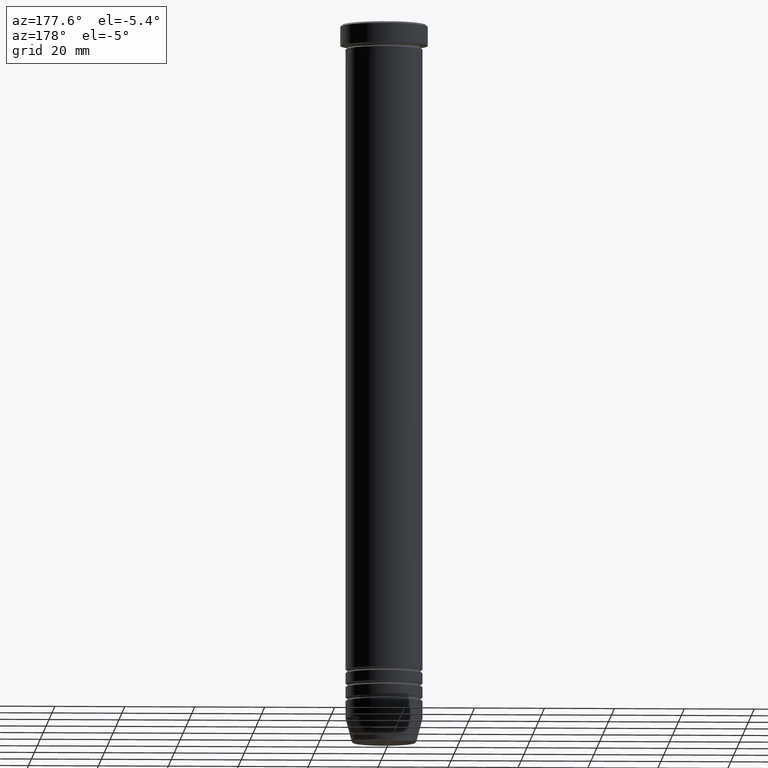
[diagram: clean part render]
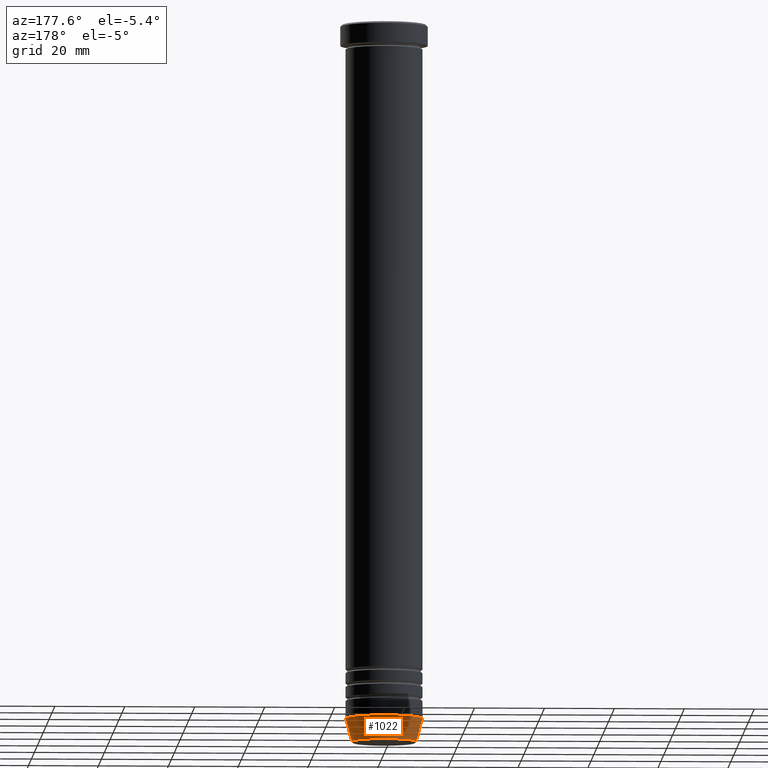
[diagram: same view with one face highlighted and labeled with its STEP entity id]
A machine part, auxiliary view. The second image highlights one B-rep face of the part: STEP entity #1022.
In plain terms, the highlighted conical surface has half-angle 15 deg.
Its self-contained STEP definition (entity closure, byte-faithful):
#20 = CARTESIAN_POINT ( 'NONE',  ( -9.124355652982140796, 1.117411294470663595E-15, -206.0000000000000284 ) ) ;
#23 = CIRCLE ( 'NONE', #204, 9.223655072137194821 ) ;
#57 = EDGE_LOOP ( 'NONE', ( #1067, #206, #1058, #1090 ) ) ;
#98 = CARTESIAN_POINT ( 'NONE',  ( -11.00000000000000178, 1.347111479062088602E-15, -199.0000000000000000 ) ) ;
#128 = EDGE_CURVE ( 'NONE', #1053, #719, #23, .T. ) ;
#135 = DIRECTION ( 'NONE',  ( -0.000000000000000000, -0.000000000000000000, 1.000000000000000000 ) ) ;
#202 = DIRECTION ( 'NONE',  ( -0.2588190451025206840, 3.169619151431763092E-17, 0.9659258262890683122 ) ) ;
#204 = AXIS2_PLACEMENT_3D ( 'NONE', #535, #465, #1077 ) ;
#206 = ORIENTED_EDGE ( 'NONE', *, *, #925, .T. ) ;
#225 = VECTOR ( 'NONE', #568, 1000.000000000000114 ) ;
#259 = EDGE_CURVE ( 'NONE', #664, #1116, #1021, .T. ) ;
#309 = DIRECTION ( 'NONE',  ( 1.000000000000000000, 0.000000000000000000, 0.000000000000000000 ) ) ;
#361 = AXIS2_PLACEMENT_3D ( 'NONE', #1012, #135, #309 ) ;
#464 = CARTESIAN_POINT ( 'NONE',  ( 9.223655072137194821, 0.000000000000000000, -205.6294095225512706 ) ) ;
#465 = DIRECTION ( 'NONE',  ( -0.000000000000000000, -0.000000000000000000, 1.000000000000000000 ) ) ;
#473 = AXIS2_PLACEMENT_3D ( 'NONE', #1007, #500, #1122 ) ;
#500 = DIRECTION ( 'NONE',  ( -0.000000000000000000, -0.000000000000000000, 1.000000000000000000 ) ) ;
#534 = LINE ( 'NONE', #20, #984 ) ;
#535 = CARTESIAN_POINT ( 'NONE',  ( 0.000000000000000000, 0.000000000000000000, -205.6294095225512706 ) ) ;
#564 = CARTESIAN_POINT ( 'NONE',  ( 11.00000000000000178, 0.000000000000000000, -199.0000000000000000 ) ) ;
#568 = DIRECTION ( 'NONE',  ( 0.2588190451025206840, 0.000000000000000000, 0.9659258262890683122 ) ) ;
#664 = VERTEX_POINT ( 'NONE', #564 ) ;
#719 = VERTEX_POINT ( 'NONE', #1084 ) ;
#923 = CARTESIAN_POINT ( 'NONE',  ( 9.124355652982140796, 0.000000000000000000, -206.0000000000000284 ) ) ;
#925 = EDGE_CURVE ( 'NONE', #719, #1116, #534, .T. ) ;
#984 = VECTOR ( 'NONE', #202, 1000.000000000000114 ) ;
#1007 = CARTESIAN_POINT ( 'NONE',  ( 0.000000000000000000, 0.000000000000000000, -199.0000000000000000 ) ) ;
#1012 = CARTESIAN_POINT ( 'NONE',  ( 0.000000000000000000, 0.000000000000000000, -206.0000000000000284 ) ) ;
#1021 = CIRCLE ( 'NONE', #473, 11.00000000000000178 ) ;
#1022 = ADVANCED_FACE ( 'NONE', ( #1113 ), #1081, .T. ) ;
#1023 = LINE ( 'NONE', #923, #225 ) ;
#1053 = VERTEX_POINT ( 'NONE', #464 ) ;
#1058 = ORIENTED_EDGE ( 'NONE', *, *, #259, .F. ) ;
#1065 = EDGE_CURVE ( 'NONE', #1053, #664, #1023, .T. ) ;
#1067 = ORIENTED_EDGE ( 'NONE', *, *, #128, .T. ) ;
#1077 = DIRECTION ( 'NONE',  ( -1.000000000000000000, 0.000000000000000000, 0.000000000000000000 ) ) ;
#1081 = CONICAL_SURFACE ( 'NONE', #361, 9.124355652982140796, 0.2617993877991493523 ) ;
#1084 = CARTESIAN_POINT ( 'NONE',  ( -9.223655072137194821, 1.238341722557647596E-15, -205.6294095225512706 ) ) ;
#1090 = ORIENTED_EDGE ( 'NONE', *, *, #1065, .F. ) ;
#1113 = FACE_OUTER_BOUND ( 'NONE', #57, .T. ) ;
#1116 = VERTEX_POINT ( 'NONE', #98 ) ;
#1122 = DIRECTION ( 'NONE',  ( 1.000000000000000000, 0.000000000000000000, 0.000000000000000000 ) ) ;